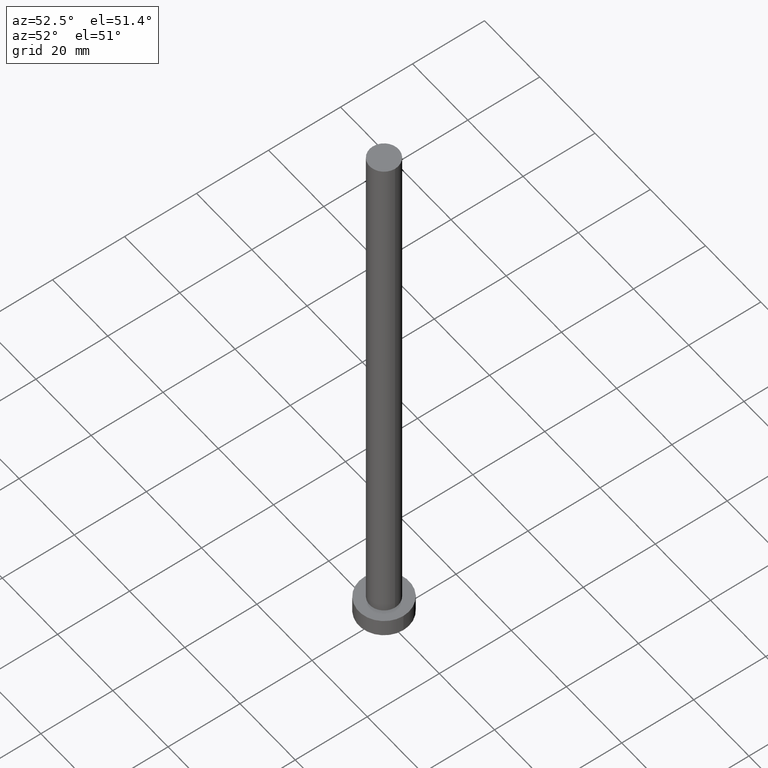
[diagram: clean part render]
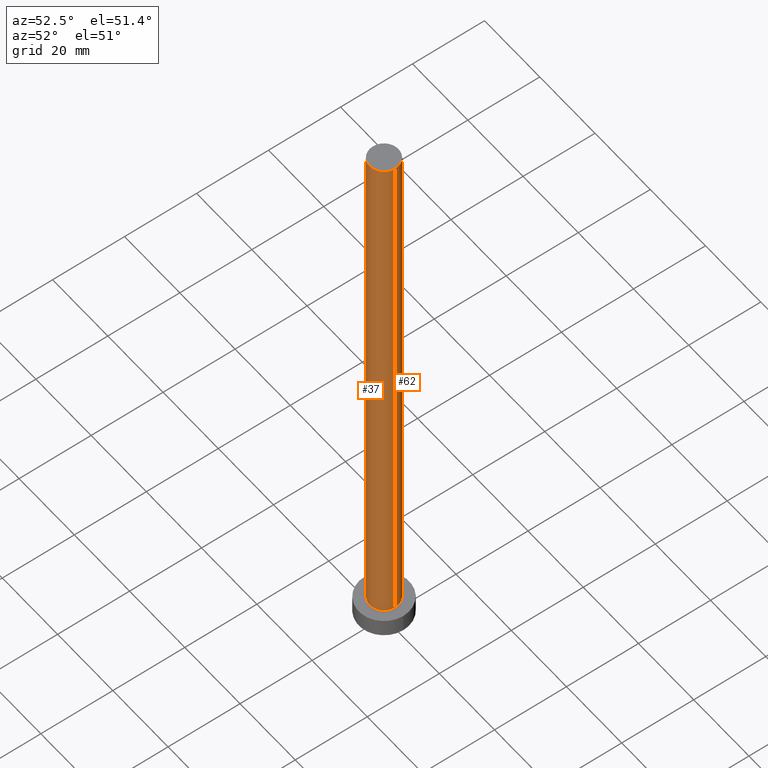
[diagram: same view with one multi-face feature highlighted, each face labeled with its STEP entity id]
A machine part, auxiliary view. The highlighted faces form ONE feature: a constant-radius fillet chain: 2 tangent blend faces with common blend radius 4 mm. The faces share edges in the B-rep.
Their STEP definitions:
[1] entity #62 (Cylinder):
#14 = CARTESIAN_POINT ( 'NONE',  ( -4.000000000000000000, 0.000000000000000000, 160.0000000000000000 ) ) ;
#24 = EDGE_CURVE ( 'NONE', #29, #52, #230, .T. ) ;
#28 = EDGE_CURVE ( 'NONE', #202, #84, #219, .T. ) ;
#29 = VERTEX_POINT ( 'NONE', #125 ) ;
#38 = VECTOR ( 'NONE', #218, 1000.000000000000000 ) ;
#39 = LINE ( 'NONE', #162, #38 ) ;
#41 = AXIS2_PLACEMENT_3D ( 'NONE', #185, #227, #66 ) ;
#46 = ORIENTED_EDGE ( 'NONE', *, *, #170, .F. ) ;
#47 = CARTESIAN_POINT ( 'NONE',  ( 0.000000000000000000, 0.000000000000000000, 160.0000000000000000 ) ) ;
#50 = CARTESIAN_POINT ( 'NONE',  ( 0.000000000000000000, 0.000000000000000000, 160.0000000000000000 ) ) ;
#51 = CARTESIAN_POINT ( 'NONE',  ( -4.000000000000000000, 0.000000000000000000, 5.000000000000000000 ) ) ;
#52 = VERTEX_POINT ( 'NONE', #51 ) ;
#62 = ADVANCED_FACE ( 'NONE', ( #229 ), #104, .T. ) ;
#66 = DIRECTION ( 'NONE',  ( 1.000000000000000000, 0.000000000000000000, 0.000000000000000000 ) ) ;
#71 = DIRECTION ( 'NONE',  ( -0.000000000000000000, -0.000000000000000000, -1.000000000000000000 ) ) ;
#84 = VERTEX_POINT ( 'NONE', #14 ) ;
#104 = CYLINDRICAL_SURFACE ( 'NONE', #138, 4.000000000000000000 ) ;
#121 = ORIENTED_EDGE ( 'NONE', *, *, #24, .T. ) ;
#125 = CARTESIAN_POINT ( 'NONE',  ( 4.000000000000000000, 4.898587196589412829E-16, 5.000000000000000000 ) ) ;
#127 = VECTOR ( 'NONE', #71, 1000.000000000000000 ) ;
#128 = DIRECTION ( 'NONE',  ( -0.000000000000000000, -0.000000000000000000, -1.000000000000000000 ) ) ;
#129 = EDGE_CURVE ( 'NONE', #202, #29, #39, .T. ) ;
#138 = AXIS2_PLACEMENT_3D ( 'NONE', #50, #128, #189 ) ;
#141 = CARTESIAN_POINT ( 'NONE',  ( -4.000000000000000000, 0.000000000000000000, 160.0000000000000000 ) ) ;
#160 = DIRECTION ( 'NONE',  ( 0.000000000000000000, 0.000000000000000000, 1.000000000000000000 ) ) ;
#162 = CARTESIAN_POINT ( 'NONE',  ( 4.000000000000000000, 4.898587196589412829E-16, 160.0000000000000000 ) ) ;
#170 = EDGE_CURVE ( 'NONE', #84, #52, #196, .T. ) ;
#171 = EDGE_LOOP ( 'NONE', ( #187, #249, #121, #46 ) ) ;
#185 = CARTESIAN_POINT ( 'NONE',  ( 0.000000000000000000, 0.000000000000000000, 5.000000000000000000 ) ) ;
#187 = ORIENTED_EDGE ( 'NONE', *, *, #28, .F. ) ;
#189 = DIRECTION ( 'NONE',  ( -1.000000000000000000, 0.000000000000000000, 0.000000000000000000 ) ) ;
#196 = LINE ( 'NONE', #141, #127 ) ;
#202 = VERTEX_POINT ( 'NONE', #217 ) ;
#217 = CARTESIAN_POINT ( 'NONE',  ( 4.000000000000000000, 4.898587196589412829E-16, 160.0000000000000000 ) ) ;
#218 = DIRECTION ( 'NONE',  ( -0.000000000000000000, -0.000000000000000000, -1.000000000000000000 ) ) ;
#219 = CIRCLE ( 'NONE', #244, 4.000000000000000000 ) ;
#227 = DIRECTION ( 'NONE',  ( 0.000000000000000000, 0.000000000000000000, 1.000000000000000000 ) ) ;
#229 = FACE_OUTER_BOUND ( 'NONE', #171, .T. ) ;
#230 = CIRCLE ( 'NONE', #41, 4.000000000000000000 ) ;
#244 = AXIS2_PLACEMENT_3D ( 'NONE', #47, #160, #247 ) ;
#247 = DIRECTION ( 'NONE',  ( 1.000000000000000000, 0.000000000000000000, 0.000000000000000000 ) ) ;
#249 = ORIENTED_EDGE ( 'NONE', *, *, #129, .T. ) ;
[2] entity #37 (Cylinder):
#7 = EDGE_CURVE ( 'NONE', #52, #29, #215, .T. ) ;
#11 = EDGE_LOOP ( 'NONE', ( #154, #26, #165, #30 ) ) ;
#14 = CARTESIAN_POINT ( 'NONE',  ( -4.000000000000000000, 0.000000000000000000, 160.0000000000000000 ) ) ;
#26 = ORIENTED_EDGE ( 'NONE', *, *, #143, .F. ) ;
#29 = VERTEX_POINT ( 'NONE', #125 ) ;
#30 = ORIENTED_EDGE ( 'NONE', *, *, #7, .T. ) ;
#37 = ADVANCED_FACE ( 'NONE', ( #246 ), #126, .T. ) ;
#38 = VECTOR ( 'NONE', #218, 1000.000000000000000 ) ;
#39 = LINE ( 'NONE', #162, #38 ) ;
#48 = CARTESIAN_POINT ( 'NONE',  ( 0.000000000000000000, 0.000000000000000000, 160.0000000000000000 ) ) ;
#51 = CARTESIAN_POINT ( 'NONE',  ( -4.000000000000000000, 0.000000000000000000, 5.000000000000000000 ) ) ;
#52 = VERTEX_POINT ( 'NONE', #51 ) ;
#59 = AXIS2_PLACEMENT_3D ( 'NONE', #135, #191, #73 ) ;
#67 = DIRECTION ( 'NONE',  ( -1.000000000000000000, 0.000000000000000000, 0.000000000000000000 ) ) ;
#70 = DIRECTION ( 'NONE',  ( 0.000000000000000000, 0.000000000000000000, 1.000000000000000000 ) ) ;
#71 = DIRECTION ( 'NONE',  ( -0.000000000000000000, -0.000000000000000000, -1.000000000000000000 ) ) ;
#73 = DIRECTION ( 'NONE',  ( 1.000000000000000000, 0.000000000000000000, 0.000000000000000000 ) ) ;
#74 = AXIS2_PLACEMENT_3D ( 'NONE', #209, #70, #102 ) ;
#84 = VERTEX_POINT ( 'NONE', #14 ) ;
#102 = DIRECTION ( 'NONE',  ( 1.000000000000000000, 0.000000000000000000, 0.000000000000000000 ) ) ;
#117 = CIRCLE ( 'NONE', #59, 4.000000000000000000 ) ;
#125 = CARTESIAN_POINT ( 'NONE',  ( 4.000000000000000000, 4.898587196589412829E-16, 5.000000000000000000 ) ) ;
#126 = CYLINDRICAL_SURFACE ( 'NONE', #175, 4.000000000000000000 ) ;
#127 = VECTOR ( 'NONE', #71, 1000.000000000000000 ) ;
#129 = EDGE_CURVE ( 'NONE', #202, #29, #39, .T. ) ;
#135 = CARTESIAN_POINT ( 'NONE',  ( 0.000000000000000000, 0.000000000000000000, 160.0000000000000000 ) ) ;
#141 = CARTESIAN_POINT ( 'NONE',  ( -4.000000000000000000, 0.000000000000000000, 160.0000000000000000 ) ) ;
#143 = EDGE_CURVE ( 'NONE', #84, #202, #117, .T. ) ;
#154 = ORIENTED_EDGE ( 'NONE', *, *, #129, .F. ) ;
#162 = CARTESIAN_POINT ( 'NONE',  ( 4.000000000000000000, 4.898587196589412829E-16, 160.0000000000000000 ) ) ;
#165 = ORIENTED_EDGE ( 'NONE', *, *, #170, .T. ) ;
#170 = EDGE_CURVE ( 'NONE', #84, #52, #196, .T. ) ;
#175 = AXIS2_PLACEMENT_3D ( 'NONE', #48, #206, #67 ) ;
#191 = DIRECTION ( 'NONE',  ( 0.000000000000000000, 0.000000000000000000, 1.000000000000000000 ) ) ;
#196 = LINE ( 'NONE', #141, #127 ) ;
#202 = VERTEX_POINT ( 'NONE', #217 ) ;
#206 = DIRECTION ( 'NONE',  ( -0.000000000000000000, -0.000000000000000000, -1.000000000000000000 ) ) ;
#209 = CARTESIAN_POINT ( 'NONE',  ( 0.000000000000000000, 0.000000000000000000, 5.000000000000000000 ) ) ;
#215 = CIRCLE ( 'NONE', #74, 4.000000000000000000 ) ;
#217 = CARTESIAN_POINT ( 'NONE',  ( 4.000000000000000000, 4.898587196589412829E-16, 160.0000000000000000 ) ) ;
#218 = DIRECTION ( 'NONE',  ( -0.000000000000000000, -0.000000000000000000, -1.000000000000000000 ) ) ;
#246 = FACE_OUTER_BOUND ( 'NONE', #11, .T. ) ;